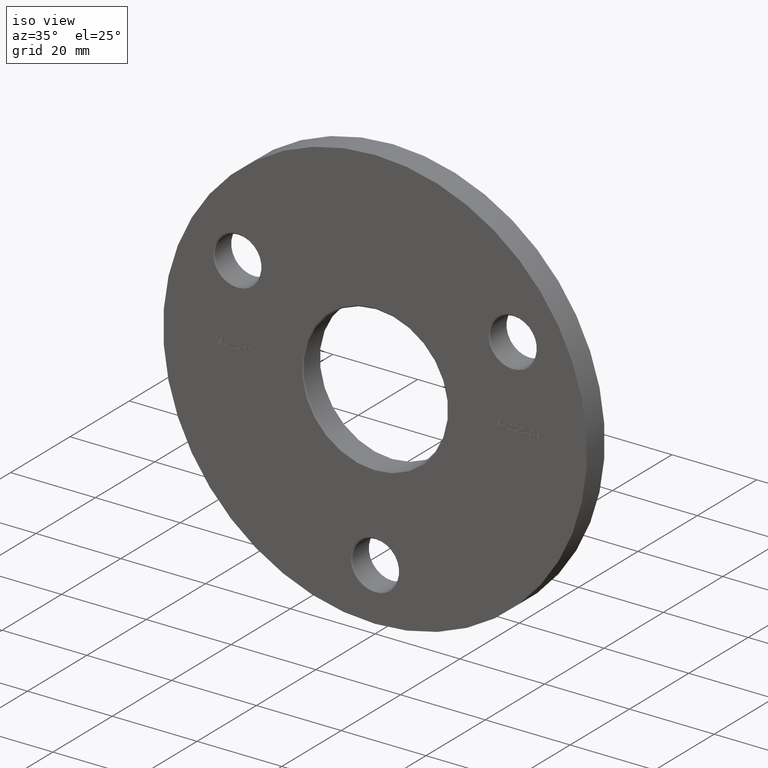
[diagram: clean part render]
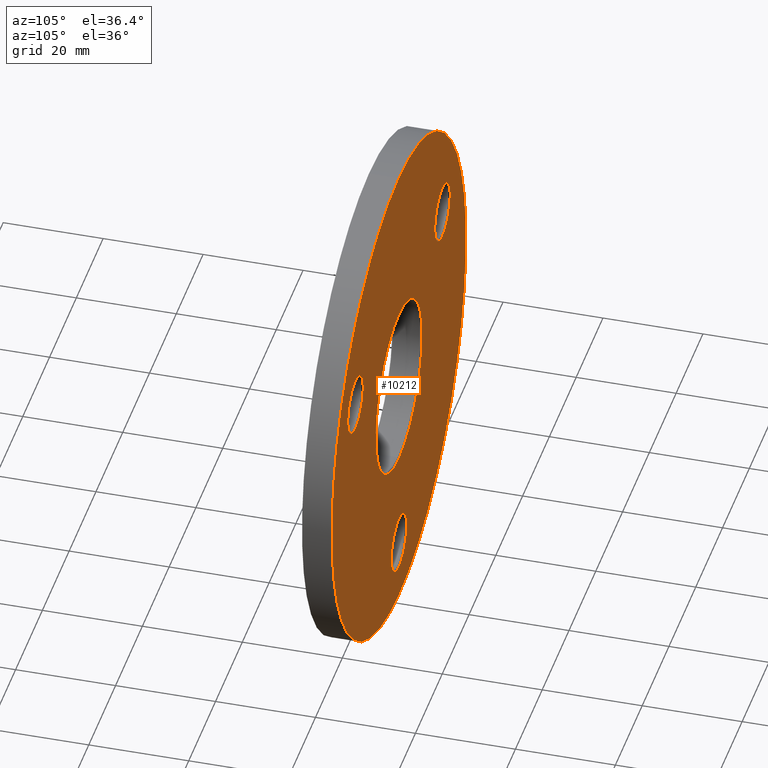
[diagram: tour spotlight — one face highlighted and labeled with its STEP entity id]
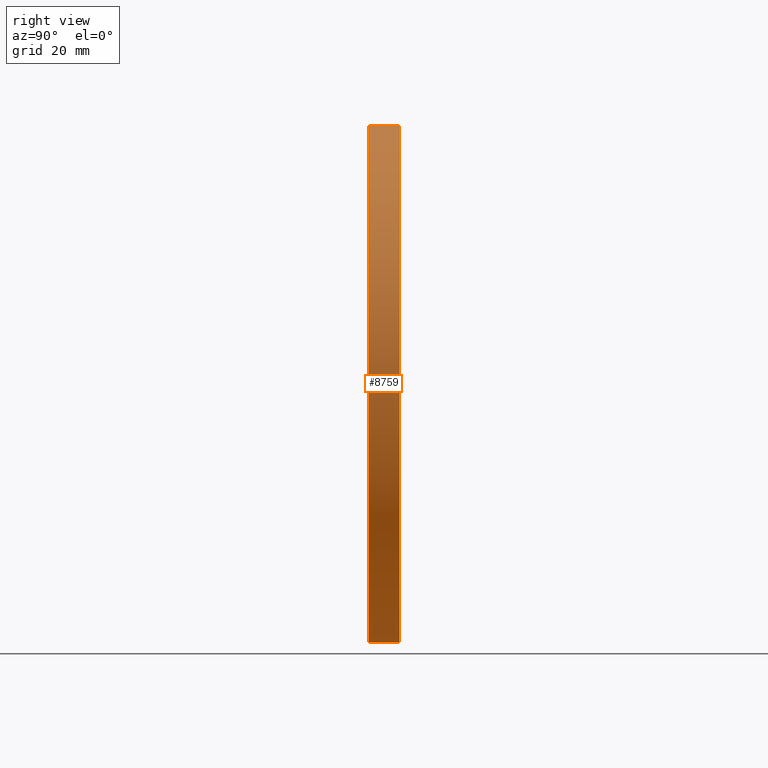
[diagram: tour spotlight — one face highlighted and labeled with its STEP entity id]
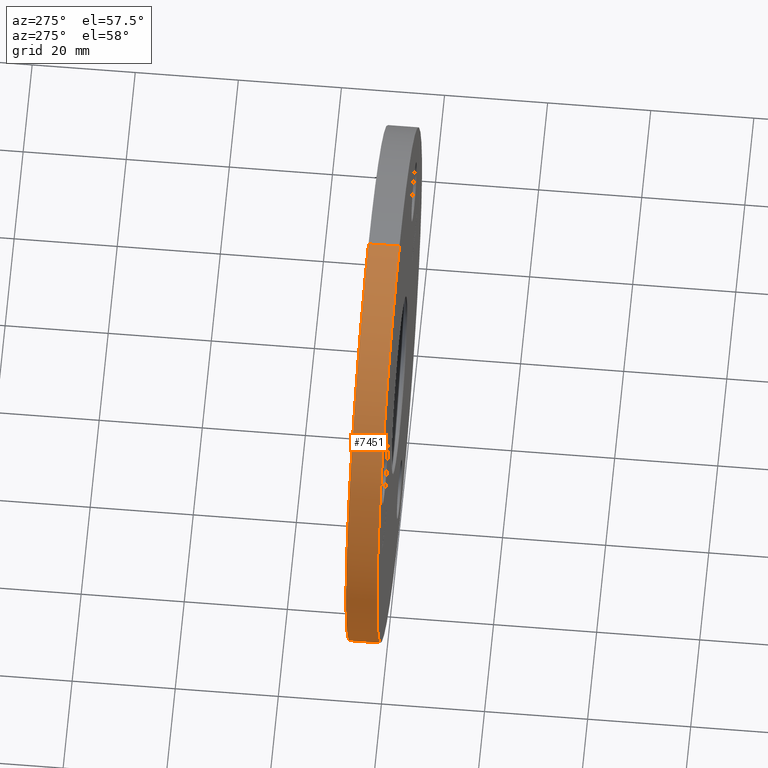
[diagram: tour spotlight — one face highlighted and labeled with its STEP entity id]
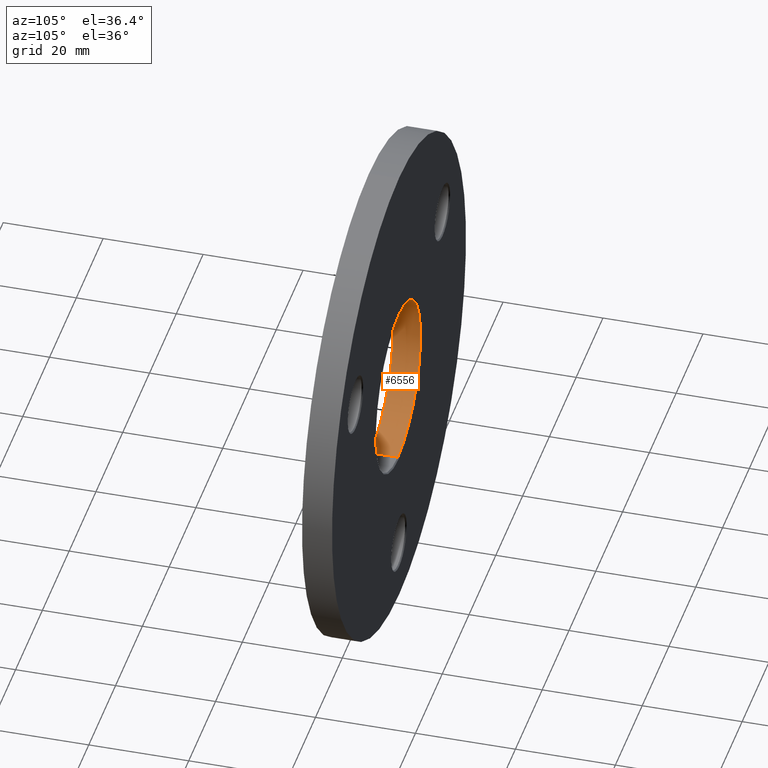
[diagram: tour spotlight — one face highlighted and labeled with its STEP entity id]
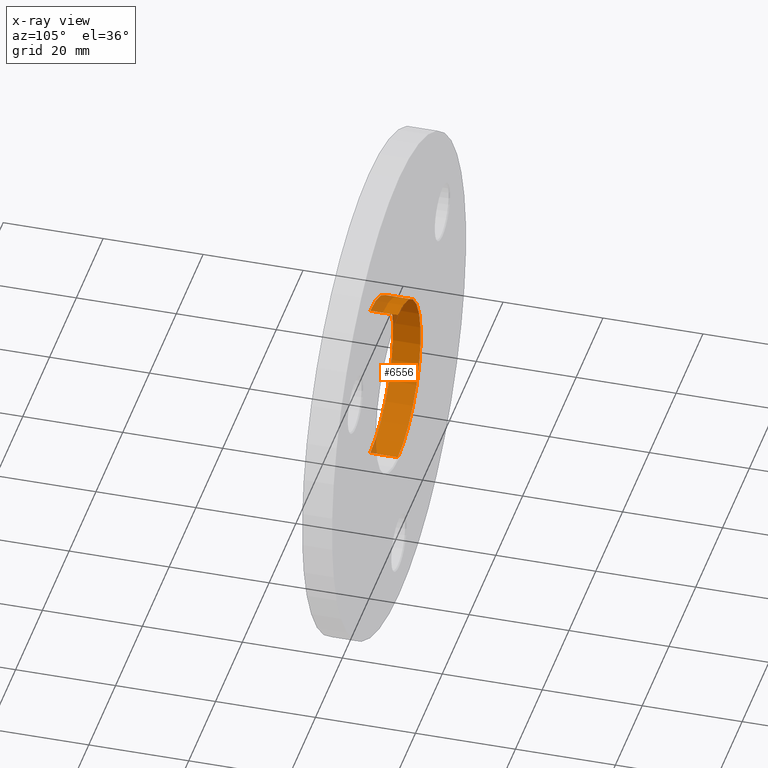
[diagram: x-ray of the same camera — body ghosted, this tour face saturated]
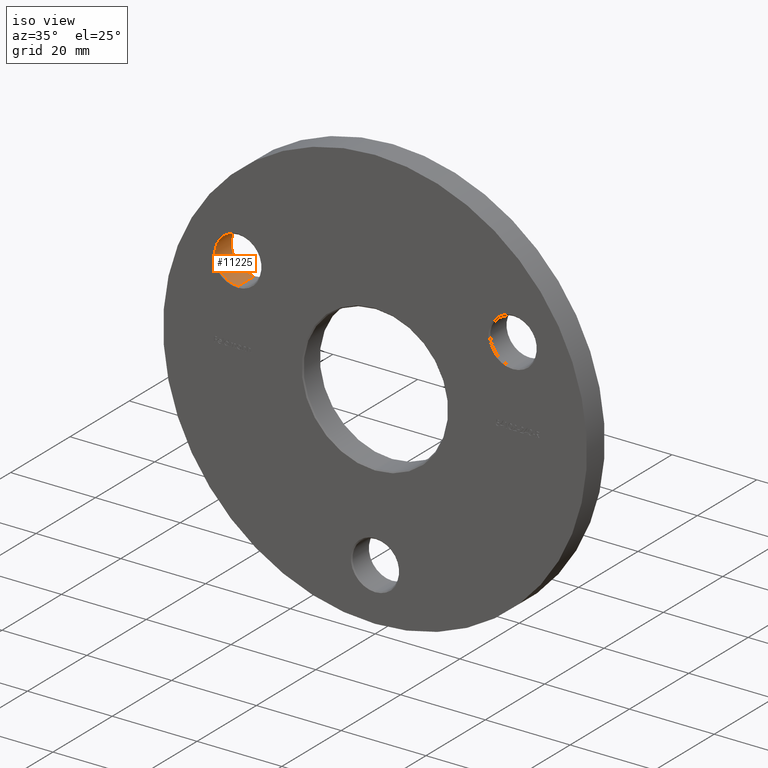
[diagram: tour spotlight — one face highlighted and labeled with its STEP entity id]
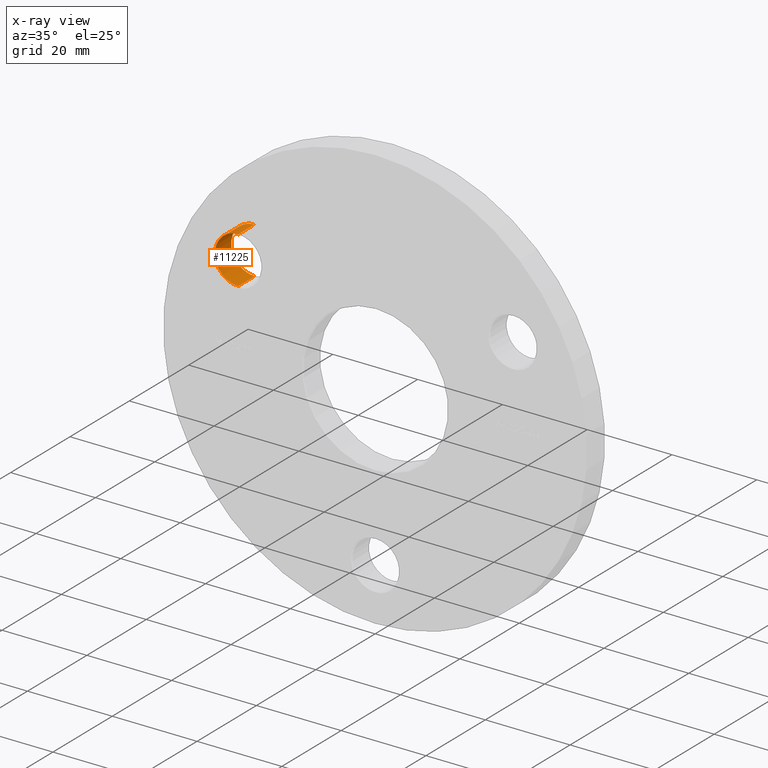
[diagram: x-ray of the same camera — body ghosted, this tour face saturated]
A machine part: a face-by-face anatomy tour. The part has 269 B-rep faces; the first image is the clean iso view, then the 5 largest visible faces are spotlighted one at a time (largest first), each with its STEP entity span.

Face 1 — auxiliary view, entity #10212. In plain terms, the highlighted planar face has unit normal (0, 1, 0).
Definition (entity closure, byte-faithful):
#44 = CARTESIAN_POINT ( 'NONE',  ( 7.041719095097303559E-16, 6.000000000000000000, -43.25000000000001421 ) ) ;
#48 = CIRCLE ( 'NONE', #235, 17.30000000000002203 ) ;
#117 = ORIENTED_EDGE ( 'NONE', *, *, #3585, .T. ) ;
#152 = VERTEX_POINT ( 'NONE', #555 ) ;
#200 = FACE_BOUND ( 'NONE', #2154, .T. ) ;
#235 = AXIS2_PLACEMENT_3D ( 'NONE', #2640, #11129, #13225 ) ;
#511 = DIRECTION ( 'NONE',  ( 0.000000000000000000, 1.000000000000000000, 0.000000000000000000 ) ) ;
#555 = CARTESIAN_POINT ( 'NONE',  ( 32.47595264191645015, 6.000000000000000000, 24.50000000000001421 ) ) ;
#585 = CARTESIAN_POINT ( 'NONE',  ( 0.000000000000000000, 6.000000000000000000, 0.000000000000000000 ) ) ;
#649 = CARTESIAN_POINT ( 'NONE',  ( 0.000000000000000000, 6.000000000000000000, 0.000000000000000000 ) ) ;
#767 = DIRECTION ( 'NONE',  ( -0.000000000000000000, -1.000000000000000000, -0.000000000000000000 ) ) ;
#978 = EDGE_CURVE ( 'NONE', #11377, #9501, #8116, .T. ) ;
#1182 = ORIENTED_EDGE ( 'NONE', *, *, #10244, .T. ) ;
#1224 = CIRCLE ( 'NONE', #7288, 50.00000000000000000 ) ;
#1609 = DIRECTION ( 'NONE',  ( 0.000000000000000000, 0.000000000000000000, 1.000000000000000000 ) ) ;
#1659 = DIRECTION ( 'NONE',  ( 0.000000000000000000, -0.000000000000000000, 1.000000000000000000 ) ) ;
#1769 = CARTESIAN_POINT ( 'NONE',  ( -32.47595264191643594, 6.000000000000000000, 12.99999999999999822 ) ) ;
#2154 = EDGE_LOOP ( 'NONE', ( #9689, #9342 ) ) ;
#2449 = VERTEX_POINT ( 'NONE', #6370 ) ;
#2560 = DIRECTION ( 'NONE',  ( 0.000000000000000000, 0.000000000000000000, 1.000000000000000000 ) ) ;
#2640 = CARTESIAN_POINT ( 'NONE',  ( 0.000000000000000000, 6.000000000000000000, 0.000000000000000000 ) ) ;
#2745 = AXIS2_PLACEMENT_3D ( 'NONE', #8814, #12998, #2560 ) ;
#2799 = FACE_BOUND ( 'NONE', #10506, .T. ) ;
#3000 = DIRECTION ( 'NONE',  ( 0.000000000000000000, 0.000000000000000000, 1.000000000000000000 ) ) ;
#3075 = EDGE_CURVE ( 'NONE', #9501, #11377, #3349, .T. ) ;
#3349 = CIRCLE ( 'NONE', #12529, 5.750000000000018652 ) ;
#3585 = EDGE_CURVE ( 'NONE', #9177, #8351, #6279, .T. ) ;
#3591 = DIRECTION ( 'NONE',  ( 0.000000000000000000, 0.000000000000000000, 1.000000000000000000 ) ) ;
#3601 = FACE_BOUND ( 'NONE', #6101, .T. ) ;
#3698 = ORIENTED_EDGE ( 'NONE', *, *, #4228, .T. ) ;
#3916 = DIRECTION ( 'NONE',  ( 0.000000000000000000, 0.000000000000000000, 1.000000000000000000 ) ) ;
#4228 = EDGE_CURVE ( 'NONE', #6522, #7905, #10707, .T. ) ;
#4264 = DIRECTION ( 'NONE',  ( 0.000000000000000000, 0.000000000000000000, 1.000000000000000000 ) ) ;
#4314 = EDGE_CURVE ( 'NONE', #9094, #5880, #9551, .T. ) ;
#4464 = EDGE_CURVE ( 'NONE', #8351, #9177, #1224, .T. ) ;
#4486 = AXIS2_PLACEMENT_3D ( 'NONE', #585, #13023, #6763 ) ;
#4525 = DIRECTION ( 'NONE',  ( 0.000000000000000000, 1.000000000000000000, 0.000000000000000000 ) ) ;
#4797 = CIRCLE ( 'NONE', #9665, 5.750000000000018652 ) ;
#5019 = CARTESIAN_POINT ( 'NONE',  ( 0.000000000000000000, 6.000000000000000000, 17.30000000000002203 ) ) ;
#5359 = EDGE_LOOP ( 'NONE', ( #1182, #10955 ) ) ;
#5511 = AXIS2_PLACEMENT_3D ( 'NONE', #10571, #8427, #4264 ) ;
#5576 = CARTESIAN_POINT ( 'NONE',  ( 0.000000000000000000, 6.000000000000000000, -31.74999999999997868 ) ) ;
#5654 = CARTESIAN_POINT ( 'NONE',  ( 0.000000000000000000, 6.000000000000000000, -50.00000000000000000 ) ) ;
#5880 = VERTEX_POINT ( 'NONE', #5576 ) ;
#6101 = EDGE_LOOP ( 'NONE', ( #9961, #13038 ) ) ;
#6139 = CARTESIAN_POINT ( 'NONE',  ( -32.47595264191643594, 6.000000000000000000, 24.50000000000003553 ) ) ;
#6143 = CARTESIAN_POINT ( 'NONE',  ( 0.000000000000000000, 6.000000000000000000, -37.50000000000000000 ) ) ;
#6279 = CIRCLE ( 'NONE', #5511, 50.00000000000000000 ) ;
#6370 = CARTESIAN_POINT ( 'NONE',  ( 32.47595264191645015, 6.000000000000000000, 12.99999999999997691 ) ) ;
#6424 = DIRECTION ( 'NONE',  ( 0.000000000000000000, 0.000000000000000000, 1.000000000000000000 ) ) ;
#6437 = EDGE_CURVE ( 'NONE', #2449, #152, #13465, .T. ) ;
#6522 = VERTEX_POINT ( 'NONE', #5019 ) ;
#6684 = EDGE_LOOP ( 'NONE', ( #9770, #117 ) ) ;
#6763 = DIRECTION ( 'NONE',  ( 0.000000000000000000, 0.000000000000000000, 1.000000000000000000 ) ) ;
#6952 = CARTESIAN_POINT ( 'NONE',  ( 2.118638962524924295E-15, 6.000000000000000000, -17.30000000000002203 ) ) ;
#7288 = AXIS2_PLACEMENT_3D ( 'NONE', #9873, #4525, #3591 ) ;
#7905 = VERTEX_POINT ( 'NONE', #6952 ) ;
#7999 = DIRECTION ( 'NONE',  ( 0.000000000000000000, 0.000000000000000000, 1.000000000000000000 ) ) ;
#8116 = CIRCLE ( 'NONE', #10761, 5.750000000000018652 ) ;
#8196 = AXIS2_PLACEMENT_3D ( 'NONE', #13049, #9868, #1609 ) ;
#8351 = VERTEX_POINT ( 'NONE', #5654 ) ;
#8427 = DIRECTION ( 'NONE',  ( 0.000000000000000000, 1.000000000000000000, 0.000000000000000000 ) ) ;
#8539 = FACE_BOUND ( 'NONE', #5359, .T. ) ;
#8559 = EDGE_CURVE ( 'NONE', #5880, #9094, #4797, .T. ) ;
#8814 = CARTESIAN_POINT ( 'NONE',  ( 32.47595264191645015, 6.000000000000000000, 18.74999999999999645 ) ) ;
#9094 = VERTEX_POINT ( 'NONE', #44 ) ;
#9177 = VERTEX_POINT ( 'NONE', #12758 ) ;
#9338 = AXIS2_PLACEMENT_3D ( 'NONE', #649, #511, #1659 ) ;
#9342 = ORIENTED_EDGE ( 'NONE', *, *, #4314, .T. ) ;
#9501 = VERTEX_POINT ( 'NONE', #6139 ) ;
#9551 = CIRCLE ( 'NONE', #11224, 5.750000000000018652 ) ;
#9650 = EDGE_CURVE ( 'NONE', #7905, #6522, #48, .T. ) ;
#9665 = AXIS2_PLACEMENT_3D ( 'NONE', #11676, #10554, #6424 ) ;
#9689 = ORIENTED_EDGE ( 'NONE', *, *, #8559, .T. ) ;
#9770 = ORIENTED_EDGE ( 'NONE', *, *, #4464, .T. ) ;
#9821 = PLANE ( 'NONE',  #9338 ) ;
#9868 = DIRECTION ( 'NONE',  ( -0.000000000000000000, -1.000000000000000000, -0.000000000000000000 ) ) ;
#9873 = CARTESIAN_POINT ( 'NONE',  ( 0.000000000000000000, 6.000000000000000000, 0.000000000000000000 ) ) ;
#9961 = ORIENTED_EDGE ( 'NONE', *, *, #3075, .T. ) ;
#10192 = CARTESIAN_POINT ( 'NONE',  ( -32.47595264191643594, 6.000000000000000000, 18.75000000000001776 ) ) ;
#10212 = ADVANCED_FACE ( 'NONE', ( #2799, #8539, #3601, #200, #12763 ), #9821, .T. ) ;
#10244 = EDGE_CURVE ( 'NONE', #152, #2449, #11770, .T. ) ;
#10506 = EDGE_LOOP ( 'NONE', ( #3698, #13444 ) ) ;
#10554 = DIRECTION ( 'NONE',  ( -0.000000000000000000, -1.000000000000000000, -0.000000000000000000 ) ) ;
#10571 = CARTESIAN_POINT ( 'NONE',  ( 0.000000000000000000, 6.000000000000000000, 0.000000000000000000 ) ) ;
#10707 = CIRCLE ( 'NONE', #4486, 17.30000000000002203 ) ;
#10761 = AXIS2_PLACEMENT_3D ( 'NONE', #13344, #12306, #7999 ) ;
#10955 = ORIENTED_EDGE ( 'NONE', *, *, #6437, .T. ) ;
#11129 = DIRECTION ( 'NONE',  ( -0.000000000000000000, -1.000000000000000000, -0.000000000000000000 ) ) ;
#11224 = AXIS2_PLACEMENT_3D ( 'NONE', #6143, #767, #3000 ) ;
#11377 = VERTEX_POINT ( 'NONE', #1769 ) ;
#11676 = CARTESIAN_POINT ( 'NONE',  ( 0.000000000000000000, 6.000000000000000000, -37.50000000000000000 ) ) ;
#11770 = CIRCLE ( 'NONE', #8196, 5.750000000000018652 ) ;
#12306 = DIRECTION ( 'NONE',  ( -0.000000000000000000, -1.000000000000000000, -0.000000000000000000 ) ) ;
#12529 = AXIS2_PLACEMENT_3D ( 'NONE', #10192, #13368, #3916 ) ;
#12758 = CARTESIAN_POINT ( 'NONE',  ( 6.123233995736766085E-15, 6.000000000000000000, 50.00000000000000000 ) ) ;
#12763 = FACE_OUTER_BOUND ( 'NONE', #6684, .T. ) ;
#12998 = DIRECTION ( 'NONE',  ( -0.000000000000000000, -1.000000000000000000, -0.000000000000000000 ) ) ;
#13023 = DIRECTION ( 'NONE',  ( -0.000000000000000000, -1.000000000000000000, -0.000000000000000000 ) ) ;
#13038 = ORIENTED_EDGE ( 'NONE', *, *, #978, .T. ) ;
#13049 = CARTESIAN_POINT ( 'NONE',  ( 32.47595264191645015, 6.000000000000000000, 18.74999999999999645 ) ) ;
#13225 = DIRECTION ( 'NONE',  ( 0.000000000000000000, 0.000000000000000000, 1.000000000000000000 ) ) ;
#13344 = CARTESIAN_POINT ( 'NONE',  ( -32.47595264191643594, 6.000000000000000000, 18.75000000000001776 ) ) ;
#13368 = DIRECTION ( 'NONE',  ( -0.000000000000000000, -1.000000000000000000, -0.000000000000000000 ) ) ;
#13444 = ORIENTED_EDGE ( 'NONE', *, *, #9650, .T. ) ;
#13465 = CIRCLE ( 'NONE', #2745, 5.750000000000018652 ) ;

Face 2 — right view, entity #8759. In plain terms, the highlighted cylindrical surface (partial cylindrical patch) has radius 50 mm, axis along (-0, -1, -0).
Definition (entity closure, byte-faithful):
#60 = CYLINDRICAL_SURFACE ( 'NONE', #6414, 50.00000000000000000 ) ;
#264 = CARTESIAN_POINT ( 'NONE',  ( 0.000000000000000000, 6.000000000000000000, -50.00000000000000000 ) ) ;
#289 = ORIENTED_EDGE ( 'NONE', *, *, #3585, .F. ) ;
#463 = CARTESIAN_POINT ( 'NONE',  ( 6.123233995736766085E-15, 6.000000000000000000, 50.00000000000000000 ) ) ;
#759 = AXIS2_PLACEMENT_3D ( 'NONE', #8331, #9384, #3985 ) ;
#2165 = VECTOR ( 'NONE', #11745, 1000.000000000000000 ) ;
#2215 = VECTOR ( 'NONE', #10916, 1000.000000000000000 ) ;
#2652 = ORIENTED_EDGE ( 'NONE', *, *, #10708, .F. ) ;
#3585 = EDGE_CURVE ( 'NONE', #9177, #8351, #6279, .T. ) ;
#3985 = DIRECTION ( 'NONE',  ( 0.000000000000000000, 0.000000000000000000, 1.000000000000000000 ) ) ;
#4264 = DIRECTION ( 'NONE',  ( 0.000000000000000000, 0.000000000000000000, 1.000000000000000000 ) ) ;
#4491 = EDGE_CURVE ( 'NONE', #9177, #11315, #10531, .T. ) ;
#4756 = EDGE_LOOP ( 'NONE', ( #289, #7637, #10725, #2652 ) ) ;
#5511 = AXIS2_PLACEMENT_3D ( 'NONE', #10571, #8427, #4264 ) ;
#5654 = CARTESIAN_POINT ( 'NONE',  ( 0.000000000000000000, 6.000000000000000000, -50.00000000000000000 ) ) ;
#6000 = CARTESIAN_POINT ( 'NONE',  ( 6.123233995736766085E-15, 0.000000000000000000, 50.00000000000000000 ) ) ;
#6279 = CIRCLE ( 'NONE', #5511, 50.00000000000000000 ) ;
#6414 = AXIS2_PLACEMENT_3D ( 'NONE', #7785, #6818, #8861 ) ;
#6818 = DIRECTION ( 'NONE',  ( -0.000000000000000000, -1.000000000000000000, -0.000000000000000000 ) ) ;
#7637 = ORIENTED_EDGE ( 'NONE', *, *, #4491, .T. ) ;
#7785 = CARTESIAN_POINT ( 'NONE',  ( 0.000000000000000000, 6.000000000000000000, 0.000000000000000000 ) ) ;
#8331 = CARTESIAN_POINT ( 'NONE',  ( 0.000000000000000000, 0.000000000000000000, 0.000000000000000000 ) ) ;
#8351 = VERTEX_POINT ( 'NONE', #5654 ) ;
#8427 = DIRECTION ( 'NONE',  ( 0.000000000000000000, 1.000000000000000000, 0.000000000000000000 ) ) ;
#8759 = ADVANCED_FACE ( 'NONE', ( #9688 ), #60, .T. ) ;
#8861 = DIRECTION ( 'NONE',  ( 0.000000000000000000, 0.000000000000000000, -1.000000000000000000 ) ) ;
#9177 = VERTEX_POINT ( 'NONE', #12758 ) ;
#9384 = DIRECTION ( 'NONE',  ( 0.000000000000000000, 1.000000000000000000, 0.000000000000000000 ) ) ;
#9503 = LINE ( 'NONE', #264, #2165 ) ;
#9688 = FACE_OUTER_BOUND ( 'NONE', #4756, .T. ) ;
#9917 = EDGE_CURVE ( 'NONE', #11315, #13475, #11784, .T. ) ;
#10531 = LINE ( 'NONE', #463, #2215 ) ;
#10571 = CARTESIAN_POINT ( 'NONE',  ( 0.000000000000000000, 6.000000000000000000, 0.000000000000000000 ) ) ;
#10708 = EDGE_CURVE ( 'NONE', #8351, #13475, #9503, .T. ) ;
#10725 = ORIENTED_EDGE ( 'NONE', *, *, #9917, .T. ) ;
#10916 = DIRECTION ( 'NONE',  ( -0.000000000000000000, -1.000000000000000000, -0.000000000000000000 ) ) ;
#11315 = VERTEX_POINT ( 'NONE', #6000 ) ;
#11745 = DIRECTION ( 'NONE',  ( -0.000000000000000000, -1.000000000000000000, -0.000000000000000000 ) ) ;
#11784 = CIRCLE ( 'NONE', #759, 50.00000000000000000 ) ;
#12758 = CARTESIAN_POINT ( 'NONE',  ( 6.123233995736766085E-15, 6.000000000000000000, 50.00000000000000000 ) ) ;
#13363 = CARTESIAN_POINT ( 'NONE',  ( 0.000000000000000000, 0.000000000000000000, -50.00000000000000000 ) ) ;
#13475 = VERTEX_POINT ( 'NONE', #13363 ) ;

Face 3 — auxiliary view, entity #7451. In plain terms, the highlighted cylindrical surface (partial cylindrical patch) has radius 50 mm, axis along (-0, -1, -0).
Definition (entity closure, byte-faithful):
#264 = CARTESIAN_POINT ( 'NONE',  ( 0.000000000000000000, 6.000000000000000000, -50.00000000000000000 ) ) ;
#463 = CARTESIAN_POINT ( 'NONE',  ( 6.123233995736766085E-15, 6.000000000000000000, 50.00000000000000000 ) ) ;
#1224 = CIRCLE ( 'NONE', #7288, 50.00000000000000000 ) ;
#2165 = VECTOR ( 'NONE', #11745, 1000.000000000000000 ) ;
#2215 = VECTOR ( 'NONE', #10916, 1000.000000000000000 ) ;
#3591 = DIRECTION ( 'NONE',  ( 0.000000000000000000, 0.000000000000000000, 1.000000000000000000 ) ) ;
#4286 = CARTESIAN_POINT ( 'NONE',  ( 0.000000000000000000, 6.000000000000000000, 0.000000000000000000 ) ) ;
#4464 = EDGE_CURVE ( 'NONE', #8351, #9177, #1224, .T. ) ;
#4491 = EDGE_CURVE ( 'NONE', #9177, #11315, #10531, .T. ) ;
#4525 = DIRECTION ( 'NONE',  ( 0.000000000000000000, 1.000000000000000000, 0.000000000000000000 ) ) ;
#4642 = ORIENTED_EDGE ( 'NONE', *, *, #4491, .F. ) ;
#4664 = DIRECTION ( 'NONE',  ( 0.000000000000000000, 1.000000000000000000, 0.000000000000000000 ) ) ;
#5654 = CARTESIAN_POINT ( 'NONE',  ( 0.000000000000000000, 6.000000000000000000, -50.00000000000000000 ) ) ;
#6000 = CARTESIAN_POINT ( 'NONE',  ( 6.123233995736766085E-15, 0.000000000000000000, 50.00000000000000000 ) ) ;
#6420 = DIRECTION ( 'NONE',  ( -0.000000000000000000, -1.000000000000000000, -0.000000000000000000 ) ) ;
#6463 = DIRECTION ( 'NONE',  ( 0.000000000000000000, 0.000000000000000000, -1.000000000000000000 ) ) ;
#6869 = AXIS2_PLACEMENT_3D ( 'NONE', #12161, #4664, #7847 ) ;
#6919 = FACE_OUTER_BOUND ( 'NONE', #8533, .T. ) ;
#7288 = AXIS2_PLACEMENT_3D ( 'NONE', #9873, #4525, #3591 ) ;
#7451 = ADVANCED_FACE ( 'NONE', ( #6919 ), #12000, .T. ) ;
#7847 = DIRECTION ( 'NONE',  ( 0.000000000000000000, 0.000000000000000000, 1.000000000000000000 ) ) ;
#8351 = VERTEX_POINT ( 'NONE', #5654 ) ;
#8533 = EDGE_LOOP ( 'NONE', ( #4642, #11674, #10184, #13180 ) ) ;
#9177 = VERTEX_POINT ( 'NONE', #12758 ) ;
#9503 = LINE ( 'NONE', #264, #2165 ) ;
#9873 = CARTESIAN_POINT ( 'NONE',  ( 0.000000000000000000, 6.000000000000000000, 0.000000000000000000 ) ) ;
#10184 = ORIENTED_EDGE ( 'NONE', *, *, #10708, .T. ) ;
#10531 = LINE ( 'NONE', #463, #2215 ) ;
#10708 = EDGE_CURVE ( 'NONE', #8351, #13475, #9503, .T. ) ;
#10916 = DIRECTION ( 'NONE',  ( -0.000000000000000000, -1.000000000000000000, -0.000000000000000000 ) ) ;
#11315 = VERTEX_POINT ( 'NONE', #6000 ) ;
#11594 = CIRCLE ( 'NONE', #6869, 50.00000000000000000 ) ;
#11640 = EDGE_CURVE ( 'NONE', #13475, #11315, #11594, .T. ) ;
#11674 = ORIENTED_EDGE ( 'NONE', *, *, #4464, .F. ) ;
#11745 = DIRECTION ( 'NONE',  ( -0.000000000000000000, -1.000000000000000000, -0.000000000000000000 ) ) ;
#12000 = CYLINDRICAL_SURFACE ( 'NONE', #12115, 50.00000000000000000 ) ;
#12115 = AXIS2_PLACEMENT_3D ( 'NONE', #4286, #6420, #6463 ) ;
#12161 = CARTESIAN_POINT ( 'NONE',  ( 0.000000000000000000, 0.000000000000000000, 0.000000000000000000 ) ) ;
#12758 = CARTESIAN_POINT ( 'NONE',  ( 6.123233995736766085E-15, 6.000000000000000000, 50.00000000000000000 ) ) ;
#13180 = ORIENTED_EDGE ( 'NONE', *, *, #11640, .T. ) ;
#13363 = CARTESIAN_POINT ( 'NONE',  ( 0.000000000000000000, 0.000000000000000000, -50.00000000000000000 ) ) ;
#13475 = VERTEX_POINT ( 'NONE', #13363 ) ;

Face 4 — auxiliary view, entity #6556. An x-ray twin of the same camera follows (body ghosted, this face saturated) — the face is partly hidden behind the body. In plain terms, the highlighted cylindrical surface (partial cylindrical patch) has radius 17.05 mm, axis along (-0, 1, -0).
Definition (entity closure, byte-faithful):
#926 = AXIS2_PLACEMENT_3D ( 'NONE', #3966, #11412, #4332 ) ;
#1298 = AXIS2_PLACEMENT_3D ( 'NONE', #2717, #11078, #13213 ) ;
#1348 = CARTESIAN_POINT ( 'NONE',  ( 0.000000000000000000, 0.000000000000000000, 17.05000000000000071 ) ) ;
#1832 = ORIENTED_EDGE ( 'NONE', *, *, #8897, .T. ) ;
#1897 = FACE_OUTER_BOUND ( 'NONE', #11389, .T. ) ;
#2717 = CARTESIAN_POINT ( 'NONE',  ( 0.000000000000000000, 0.2500000000000140998, 0.000000000000000000 ) ) ;
#2738 = ORIENTED_EDGE ( 'NONE', *, *, #11581, .F. ) ;
#3611 = CARTESIAN_POINT ( 'NONE',  ( 0.000000000000000000, 5.749999999999972466, 0.000000000000000000 ) ) ;
#3622 = DIRECTION ( 'NONE',  ( -0.000000000000000000, 1.000000000000000000, -0.000000000000000000 ) ) ;
#3659 = ORIENTED_EDGE ( 'NONE', *, *, #13505, .T. ) ;
#3747 = VERTEX_POINT ( 'NONE', #6885 ) ;
#3966 = CARTESIAN_POINT ( 'NONE',  ( 0.000000000000000000, 0.000000000000000000, 0.000000000000000000 ) ) ;
#4332 = DIRECTION ( 'NONE',  ( 0.000000000000000000, 0.000000000000000000, 1.000000000000000000 ) ) ;
#4415 = VERTEX_POINT ( 'NONE', #8469 ) ;
#4715 = VERTEX_POINT ( 'NONE', #10017 ) ;
#4937 = LINE ( 'NONE', #7881, #9682 ) ;
#5708 = LINE ( 'NONE', #1348, #11760 ) ;
#6556 = ADVANCED_FACE ( 'NONE', ( #1897 ), #7577, .F. ) ;
#6885 = CARTESIAN_POINT ( 'NONE',  ( 0.000000000000000000, 5.749999999999972466, 17.05000000000000071 ) ) ;
#6989 = CIRCLE ( 'NONE', #7598, 17.05000000000000071 ) ;
#7052 = VERTEX_POINT ( 'NONE', #12992 ) ;
#7577 = CYLINDRICAL_SURFACE ( 'NONE', #926, 17.05000000000000071 ) ;
#7598 = AXIS2_PLACEMENT_3D ( 'NONE', #3611, #9750, #12882 ) ;
#7881 = CARTESIAN_POINT ( 'NONE',  ( 2.088022792546237353E-15, 0.000000000000000000, -17.05000000000000071 ) ) ;
#8469 = CARTESIAN_POINT ( 'NONE',  ( 2.088022792546237353E-15, 0.2500000000000140998, -17.05000000000000071 ) ) ;
#8524 = CIRCLE ( 'NONE', #1298, 17.05000000000000071 ) ;
#8897 = EDGE_CURVE ( 'NONE', #4415, #7052, #4937, .T. ) ;
#9053 = DIRECTION ( 'NONE',  ( -0.000000000000000000, 1.000000000000000000, -0.000000000000000000 ) ) ;
#9682 = VECTOR ( 'NONE', #3622, 1000.000000000000000 ) ;
#9750 = DIRECTION ( 'NONE',  ( 0.000000000000000000, 1.000000000000000000, 0.000000000000000000 ) ) ;
#10017 = CARTESIAN_POINT ( 'NONE',  ( 0.000000000000000000, 0.2500000000000140998, 17.05000000000000071 ) ) ;
#10692 = ORIENTED_EDGE ( 'NONE', *, *, #10848, .T. ) ;
#10848 = EDGE_CURVE ( 'NONE', #4715, #4415, #8524, .T. ) ;
#11078 = DIRECTION ( 'NONE',  ( -0.000000000000000000, -1.000000000000000000, -0.000000000000000000 ) ) ;
#11389 = EDGE_LOOP ( 'NONE', ( #10692, #1832, #3659, #2738 ) ) ;
#11412 = DIRECTION ( 'NONE',  ( -0.000000000000000000, 1.000000000000000000, -0.000000000000000000 ) ) ;
#11581 = EDGE_CURVE ( 'NONE', #4715, #3747, #5708, .T. ) ;
#11760 = VECTOR ( 'NONE', #9053, 1000.000000000000000 ) ;
#12882 = DIRECTION ( 'NONE',  ( 0.000000000000000000, 0.000000000000000000, 1.000000000000000000 ) ) ;
#12992 = CARTESIAN_POINT ( 'NONE',  ( 2.088022792546237353E-15, 5.749999999999972466, -17.05000000000000071 ) ) ;
#13213 = DIRECTION ( 'NONE',  ( 0.000000000000000000, 0.000000000000000000, 1.000000000000000000 ) ) ;
#13505 = EDGE_CURVE ( 'NONE', #7052, #3747, #6989, .T. ) ;

Face 5 — iso view, entity #11225. An x-ray twin of the same camera follows (body ghosted, this face saturated) — the face is partly hidden behind the body. In plain terms, the highlighted cylindrical surface (edge-blend (fillet) strip) has radius 5.5 mm, axis along (-0, -1, -0).
Definition (entity closure, byte-faithful):
#26 = DIRECTION ( 'NONE',  ( 0.000000000000000000, 0.000000000000000000, 1.000000000000000000 ) ) ;
#68 = CARTESIAN_POINT ( 'NONE',  ( -32.47595264191643594, 0.2499999999999941436, 18.75000000000001776 ) ) ;
#377 = CARTESIAN_POINT ( 'NONE',  ( -32.47595264191643594, 0.2499999999999941436, 24.25000000000001421 ) ) ;
#383 = CARTESIAN_POINT ( 'NONE',  ( -32.47595264191643594, 6.000000000000000000, 18.75000000000001776 ) ) ;
#464 = VECTOR ( 'NONE', #3862, 1000.000000000000000 ) ;
#1085 = CARTESIAN_POINT ( 'NONE',  ( -32.47595264191643594, 0.2499999999999941436, 13.25000000000002132 ) ) ;
#1157 = EDGE_CURVE ( 'NONE', #1735, #3504, #4201, .T. ) ;
#1281 = VERTEX_POINT ( 'NONE', #4609 ) ;
#1456 = LINE ( 'NONE', #6967, #464 ) ;
#1556 = LINE ( 'NONE', #3233, #9566 ) ;
#1735 = VERTEX_POINT ( 'NONE', #377 ) ;
#2358 = ORIENTED_EDGE ( 'NONE', *, *, #12340, .T. ) ;
#2483 = DIRECTION ( 'NONE',  ( -0.000000000000000000, -1.000000000000000000, -0.000000000000000000 ) ) ;
#3046 = DIRECTION ( 'NONE',  ( 0.000000000000000000, 0.000000000000000000, 1.000000000000000000 ) ) ;
#3233 = CARTESIAN_POINT ( 'NONE',  ( -32.47595264191643594, 6.000000000000000000, 24.25000000000001421 ) ) ;
#3504 = VERTEX_POINT ( 'NONE', #1085 ) ;
#3862 = DIRECTION ( 'NONE',  ( -0.000000000000000000, -1.000000000000000000, -0.000000000000000000 ) ) ;
#4119 = AXIS2_PLACEMENT_3D ( 'NONE', #5361, #10259, #3046 ) ;
#4126 = DIRECTION ( 'NONE',  ( -0.000000000000000000, -1.000000000000000000, -0.000000000000000000 ) ) ;
#4201 = CIRCLE ( 'NONE', #5348, 5.499999999999998224 ) ;
#4584 = DIRECTION ( 'NONE',  ( 0.000000000000000000, 0.000000000000000000, -1.000000000000000000 ) ) ;
#4609 = CARTESIAN_POINT ( 'NONE',  ( -32.47595264191643594, 5.749999999999985789, 24.25000000000001421 ) ) ;
#4750 = CYLINDRICAL_SURFACE ( 'NONE', #10407, 5.499999999999996447 ) ;
#5348 = AXIS2_PLACEMENT_3D ( 'NONE', #68, #4126, #26 ) ;
#5361 = CARTESIAN_POINT ( 'NONE',  ( -32.47595264191643594, 5.749999999999985789, 18.75000000000001776 ) ) ;
#5501 = DIRECTION ( 'NONE',  ( -0.000000000000000000, -1.000000000000000000, -0.000000000000000000 ) ) ;
#6341 = ORIENTED_EDGE ( 'NONE', *, *, #1157, .T. ) ;
#6607 = EDGE_CURVE ( 'NONE', #1281, #1735, #1556, .T. ) ;
#6967 = CARTESIAN_POINT ( 'NONE',  ( -32.47595264191643594, 6.000000000000000000, 13.25000000000002132 ) ) ;
#7507 = CIRCLE ( 'NONE', #4119, 5.499999999999998224 ) ;
#7522 = FACE_OUTER_BOUND ( 'NONE', #13523, .T. ) ;
#8213 = CARTESIAN_POINT ( 'NONE',  ( -32.47595264191643594, 5.749999999999985789, 13.25000000000002132 ) ) ;
#9316 = ORIENTED_EDGE ( 'NONE', *, *, #13461, .F. ) ;
#9566 = VECTOR ( 'NONE', #5501, 1000.000000000000000 ) ;
#9773 = VERTEX_POINT ( 'NONE', #8213 ) ;
#10259 = DIRECTION ( 'NONE',  ( 0.000000000000000000, 1.000000000000000000, 0.000000000000000000 ) ) ;
#10407 = AXIS2_PLACEMENT_3D ( 'NONE', #383, #2483, #4584 ) ;
#10973 = ORIENTED_EDGE ( 'NONE', *, *, #6607, .T. ) ;
#11225 = ADVANCED_FACE ( 'NONE', ( #7522 ), #4750, .F. ) ;
#12340 = EDGE_CURVE ( 'NONE', #9773, #1281, #7507, .T. ) ;
#13461 = EDGE_CURVE ( 'NONE', #9773, #3504, #1456, .T. ) ;
#13523 = EDGE_LOOP ( 'NONE', ( #2358, #10973, #6341, #9316 ) ) ;